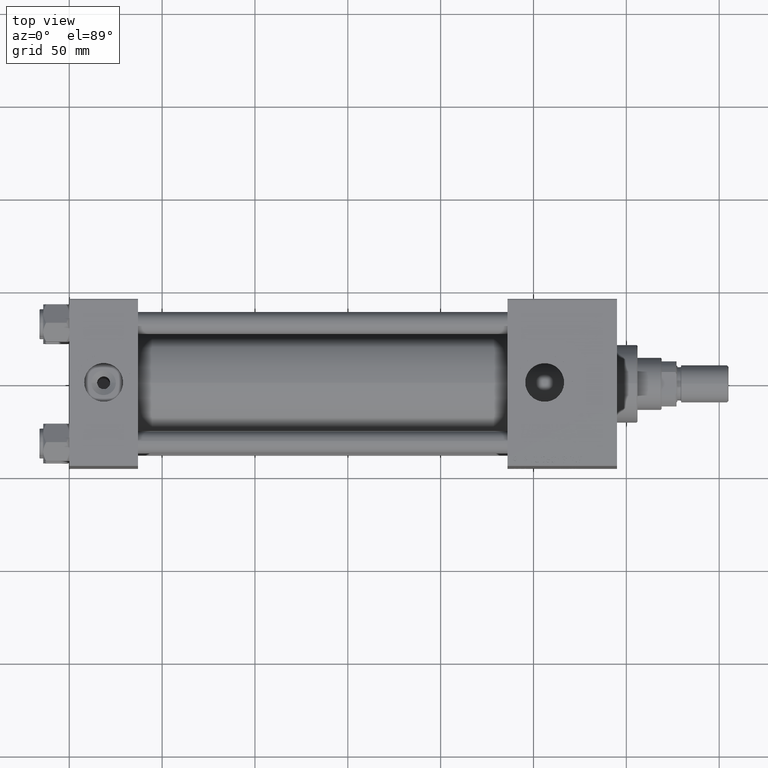
[diagram: clean part render]
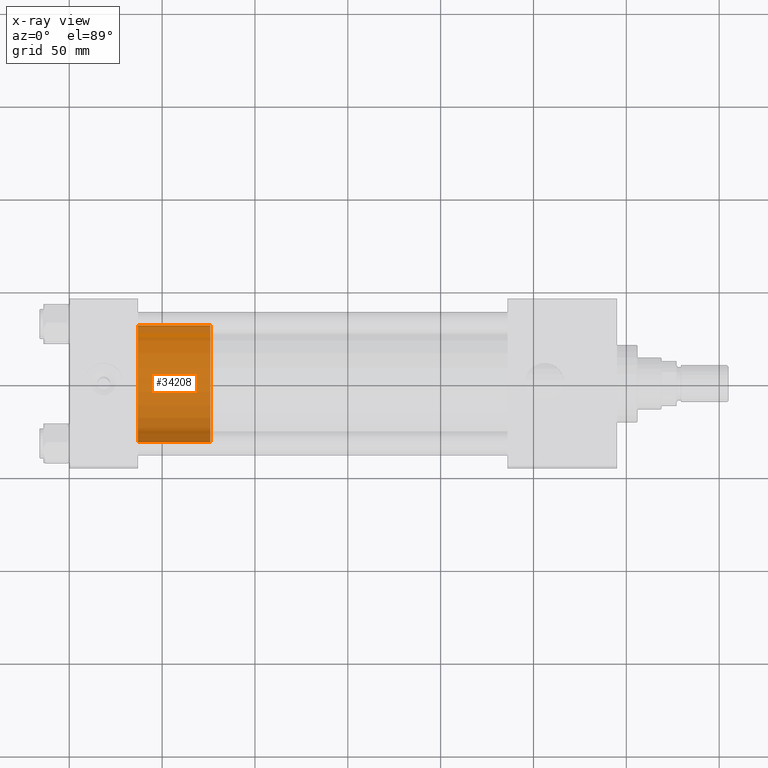
[diagram: x-ray — body ghosted, one internal face saturated and labeled with its STEP entity id]
A machine part, top view, then the same camera in x-ray: the body is ghosted and one INTERNAL B-rep face — a face not visible from any outside direction — is saturated and labeled: STEP entity #34208.
In plain terms, the highlighted cylindrical surface (partial cylindrical patch) has radius 31.5 mm, axis along (-1, 0, 0).
Its self-contained STEP definition (entity closure, byte-faithful):
#254 = ORIENTED_EDGE ( 'NONE', *, *, #40299, .T. ) ;
#302 = CIRCLE ( 'NONE', #31897, 31.50000000000000000 ) ;
#1103 = DIRECTION ( 'NONE',  ( 1.000000000000000000, 0.000000000000000000, 0.000000000000000000 ) ) ;
#1411 = VERTEX_POINT ( 'NONE', #28881 ) ;
#1571 = DIRECTION ( 'NONE',  ( -0.000000000000000000, -0.000000000000000000, -1.000000000000000000 ) ) ;
#1967 = CIRCLE ( 'NONE', #42999, 31.50000000000000000 ) ;
#3736 = CARTESIAN_POINT ( 'NONE',  ( 0.000000000000000000, 0.000000000000000000, 0.000000000000000000 ) ) ;
#4177 = CARTESIAN_POINT ( 'NONE',  ( 31.50000000000000000, 3.857637417314162689E-15, 39.00000000000000000 ) ) ;
#7710 = DIRECTION ( 'NONE',  ( -0.000000000000000000, -0.000000000000000000, -1.000000000000000000 ) ) ;
#10857 = EDGE_CURVE ( 'NONE', #40140, #1411, #15488, .T. ) ;
#12426 = VERTEX_POINT ( 'NONE', #40791 ) ;
#12814 = ORIENTED_EDGE ( 'NONE', *, *, #39415, .F. ) ;
#12854 = FACE_OUTER_BOUND ( 'NONE', #36262, .T. ) ;
#15488 = LINE ( 'NONE', #48669, #44611 ) ;
#20041 = DIRECTION ( 'NONE',  ( 0.000000000000000000, 0.000000000000000000, 1.000000000000000000 ) ) ;
#21422 = CARTESIAN_POINT ( 'NONE',  ( 0.000000000000000000, 0.000000000000000000, 39.00000000000000000 ) ) ;
#24887 = DIRECTION ( 'NONE',  ( -1.000000000000000000, 0.000000000000000000, 0.000000000000000000 ) ) ;
#28881 = CARTESIAN_POINT ( 'NONE',  ( -31.50000000000000000, 0.000000000000000000, 0.000000000000000000 ) ) ;
#31897 = AXIS2_PLACEMENT_3D ( 'NONE', #3736, #20041, #48698 ) ;
#34208 = ADVANCED_FACE ( 'NONE', ( #12854 ), #40963, .T. ) ;
#34495 = VECTOR ( 'NONE', #1571, 1000.000000000000000 ) ;
#36262 = EDGE_LOOP ( 'NONE', ( #12814, #39544, #254, #50976 ) ) ;
#37449 = LINE ( 'NONE', #46275, #34495 ) ;
#38554 = DIRECTION ( 'NONE',  ( 0.000000000000000000, 0.000000000000000000, 1.000000000000000000 ) ) ;
#39415 = EDGE_CURVE ( 'NONE', #42116, #40140, #1967, .T. ) ;
#39544 = ORIENTED_EDGE ( 'NONE', *, *, #40537, .T. ) ;
#40140 = VERTEX_POINT ( 'NONE', #46609 ) ;
#40299 = EDGE_CURVE ( 'NONE', #12426, #1411, #302, .T. ) ;
#40537 = EDGE_CURVE ( 'NONE', #42116, #12426, #37449, .T. ) ;
#40791 = CARTESIAN_POINT ( 'NONE',  ( 31.50000000000000000, 3.857637417314162689E-15, 0.000000000000000000 ) ) ;
#40963 = CYLINDRICAL_SURFACE ( 'NONE', #52157, 31.50000000000000000 ) ;
#42116 = VERTEX_POINT ( 'NONE', #4177 ) ;
#42999 = AXIS2_PLACEMENT_3D ( 'NONE', #21422, #38554, #1103 ) ;
#44611 = VECTOR ( 'NONE', #7710, 1000.000000000000000 ) ;
#46275 = CARTESIAN_POINT ( 'NONE',  ( 31.50000000000000000, 3.857637417314162689E-15, 39.00000000000000000 ) ) ;
#46609 = CARTESIAN_POINT ( 'NONE',  ( -31.50000000000000000, 0.000000000000000000, 39.00000000000000000 ) ) ;
#48669 = CARTESIAN_POINT ( 'NONE',  ( -31.50000000000000000, 0.000000000000000000, 39.00000000000000000 ) ) ;
#48698 = DIRECTION ( 'NONE',  ( 1.000000000000000000, 0.000000000000000000, 0.000000000000000000 ) ) ;
#48991 = CARTESIAN_POINT ( 'NONE',  ( 0.000000000000000000, 0.000000000000000000, 39.00000000000000000 ) ) ;
#49798 = DIRECTION ( 'NONE',  ( -0.000000000000000000, -0.000000000000000000, -1.000000000000000000 ) ) ;
#50976 = ORIENTED_EDGE ( 'NONE', *, *, #10857, .F. ) ;
#52157 = AXIS2_PLACEMENT_3D ( 'NONE', #48991, #49798, #24887 ) ;